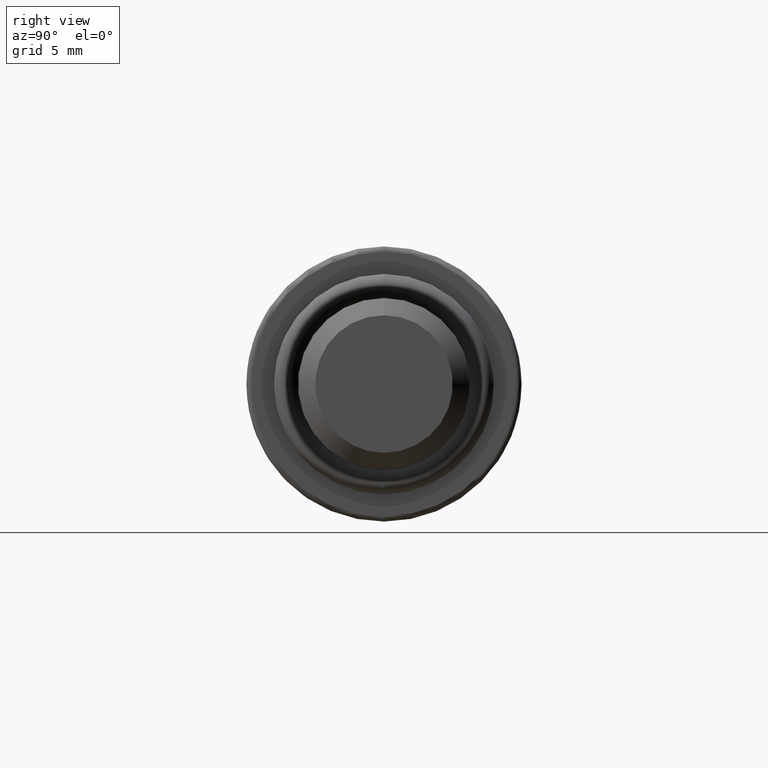
[diagram: clean part render]
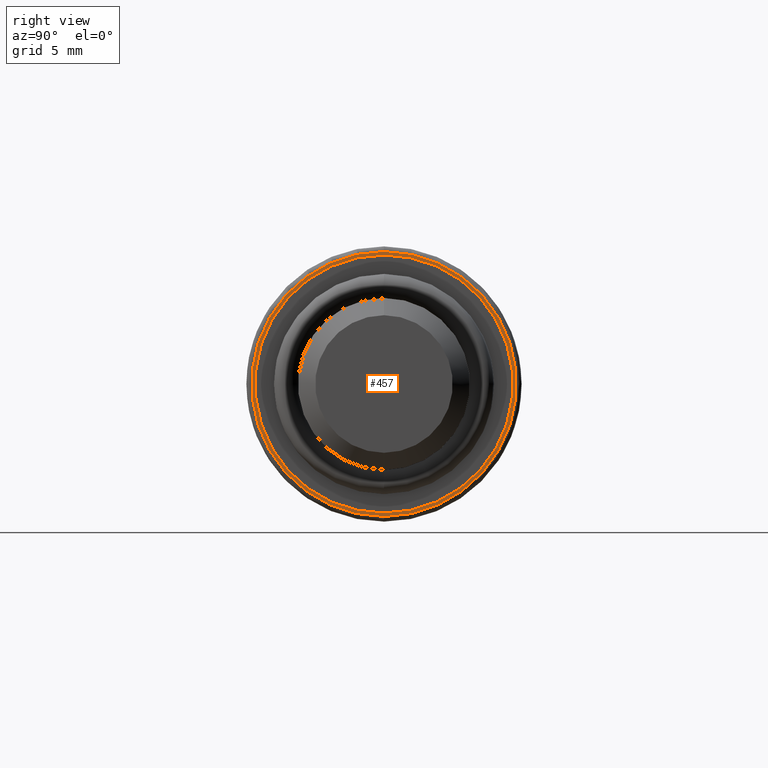
[diagram: same view with one face highlighted and labeled with its STEP entity id]
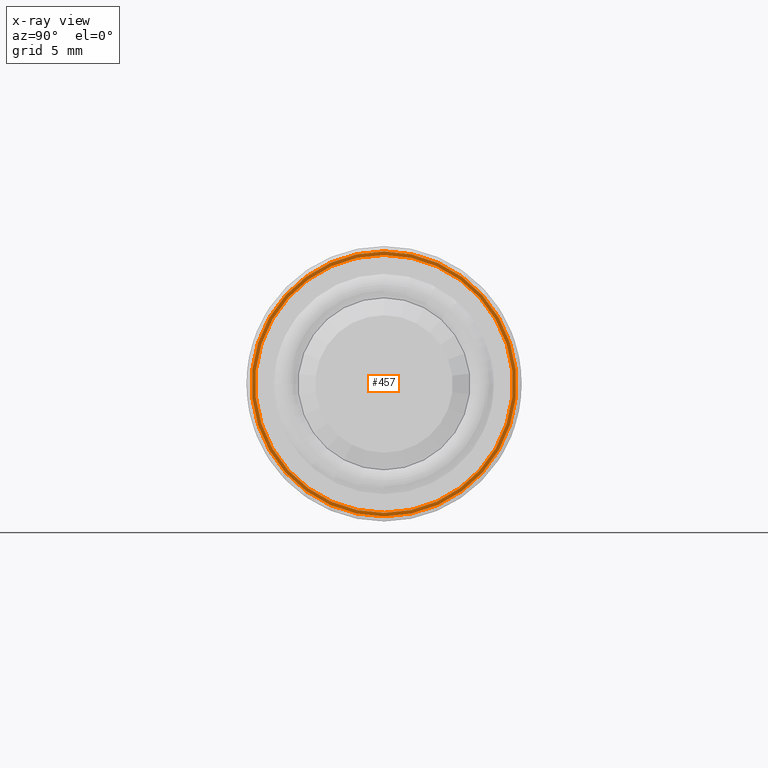
[diagram: x-ray of the same camera — body ghosted, the highlighted face saturated]
A machine part, right view. The second image highlights one B-rep face of the part: STEP entity #457.
The next image is the same camera in x-ray: the body ghosted, the highlighted face saturated — about 0% of this face is hidden behind the body in this view.
In plain terms, the highlighted planar face has unit normal (1, 0, 0).
Its self-contained STEP definition (entity closure, byte-faithful):
#1 = DIRECTION ( 'NONE',  ( 0.0000000000000000000, 0.0000000000000000000, -1.000000000000000000 ) ) ;
#16 = DIRECTION ( 'NONE',  ( 1.000000000000000000, 0.0000000000000000000, 0.0000000000000000000 ) ) ;
#24 = AXIS2_PLACEMENT_3D ( 'NONE', #752, #373, #1 ) ;
#30 = VERTEX_POINT ( 'NONE', #229 ) ;
#35 = CIRCLE ( 'NONE', #573, 7.500000000000000000 ) ;
#43 = ORIENTED_EDGE ( 'NONE', *, *, #790, .T. ) ;
#143 = CARTESIAN_POINT ( 'NONE',  ( 0.0000000000000000000, 0.0000000000000000000, 0.0000000000000000000 ) ) ;
#178 = DIRECTION ( 'NONE',  ( 1.000000000000000000, 0.0000000000000000000, 0.0000000000000000000 ) ) ;
#199 = CARTESIAN_POINT ( 'NONE',  ( 0.0000000000000000000, 9.184850993605147900E-016, 7.500000000000000000 ) ) ;
#202 = DIRECTION ( 'NONE',  ( 0.0000000000000000000, 0.0000000000000000000, -1.000000000000000000 ) ) ;
#229 = CARTESIAN_POINT ( 'NONE',  ( 0.0000000000000000000, 9.613477373306721400E-016, 7.700000000000000200 ) ) ;
#260 = CARTESIAN_POINT ( 'NONE',  ( 0.0000000000000000000, 0.0000000000000000000, 0.0000000000000000000 ) ) ;
#280 = AXIS2_PLACEMENT_3D ( 'NONE', #260, #700, #321 ) ;
#298 = CARTESIAN_POINT ( 'NONE',  ( 0.0000000000000000000, 0.0000000000000000000, -7.700000000000000200 ) ) ;
#300 = VERTEX_POINT ( 'NONE', #687 ) ;
#320 = ORIENTED_EDGE ( 'NONE', *, *, #480, .F. ) ;
#321 = DIRECTION ( 'NONE',  ( 0.0000000000000000000, 0.0000000000000000000, -1.000000000000000000 ) ) ;
#322 = EDGE_CURVE ( 'NONE', #431, #300, #485, .T. ) ;
#325 = AXIS2_PLACEMENT_3D ( 'NONE', #552, #178, #618 ) ;
#373 = DIRECTION ( 'NONE',  ( 1.000000000000000000, 0.0000000000000000000, 0.0000000000000000000 ) ) ;
#388 = CARTESIAN_POINT ( 'NONE',  ( 0.0000000000000000000, 0.0000000000000000000, 0.0000000000000000000 ) ) ;
#402 = EDGE_LOOP ( 'NONE', ( #320, #658 ) ) ;
#403 = EDGE_CURVE ( 'NONE', #30, #784, #449, .T. ) ;
#406 = FACE_BOUND ( 'NONE', #402, .T. ) ;
#431 = VERTEX_POINT ( 'NONE', #199 ) ;
#447 = PLANE ( 'NONE',  #527 ) ;
#449 = CIRCLE ( 'NONE', #280, 7.700000000000000200 ) ;
#456 = DIRECTION ( 'NONE',  ( 0.0000000000000000000, 0.0000000000000000000, -1.000000000000000000 ) ) ;
#457 = ADVANCED_FACE ( 'NONE', ( #556, #406 ), #447, .T. ) ;
#462 = ORIENTED_EDGE ( 'NONE', *, *, #403, .T. ) ;
#480 = EDGE_CURVE ( 'NONE', #300, #431, #35, .T. ) ;
#485 = CIRCLE ( 'NONE', #24, 7.500000000000000000 ) ;
#527 = AXIS2_PLACEMENT_3D ( 'NONE', #143, #578, #202 ) ;
#552 = CARTESIAN_POINT ( 'NONE',  ( 0.0000000000000000000, 0.0000000000000000000, 0.0000000000000000000 ) ) ;
#556 = FACE_OUTER_BOUND ( 'NONE', #741, .T. ) ;
#573 = AXIS2_PLACEMENT_3D ( 'NONE', #388, #16, #456 ) ;
#578 = DIRECTION ( 'NONE',  ( 1.000000000000000000, 0.0000000000000000000, 0.0000000000000000000 ) ) ;
#598 = CIRCLE ( 'NONE', #325, 7.700000000000000200 ) ;
#618 = DIRECTION ( 'NONE',  ( 0.0000000000000000000, 0.0000000000000000000, -1.000000000000000000 ) ) ;
#658 = ORIENTED_EDGE ( 'NONE', *, *, #322, .F. ) ;
#687 = CARTESIAN_POINT ( 'NONE',  ( 0.0000000000000000000, 0.0000000000000000000, -7.500000000000000000 ) ) ;
#700 = DIRECTION ( 'NONE',  ( 1.000000000000000000, 0.0000000000000000000, 0.0000000000000000000 ) ) ;
#741 = EDGE_LOOP ( 'NONE', ( #43, #462 ) ) ;
#752 = CARTESIAN_POINT ( 'NONE',  ( 0.0000000000000000000, 0.0000000000000000000, 0.0000000000000000000 ) ) ;
#784 = VERTEX_POINT ( 'NONE', #298 ) ;
#790 = EDGE_CURVE ( 'NONE', #784, #30, #598, .T. ) ;